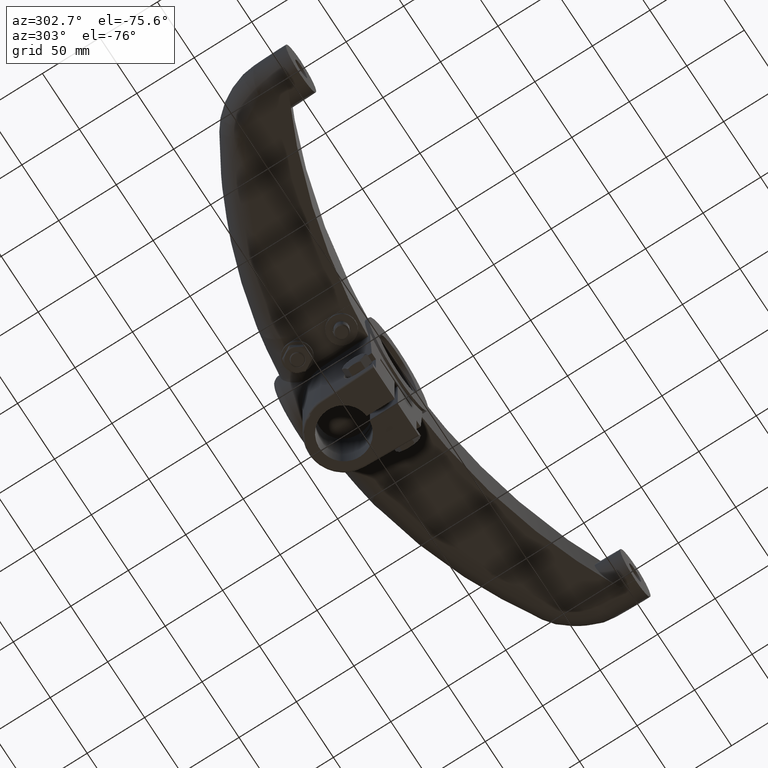
[diagram: clean part render]
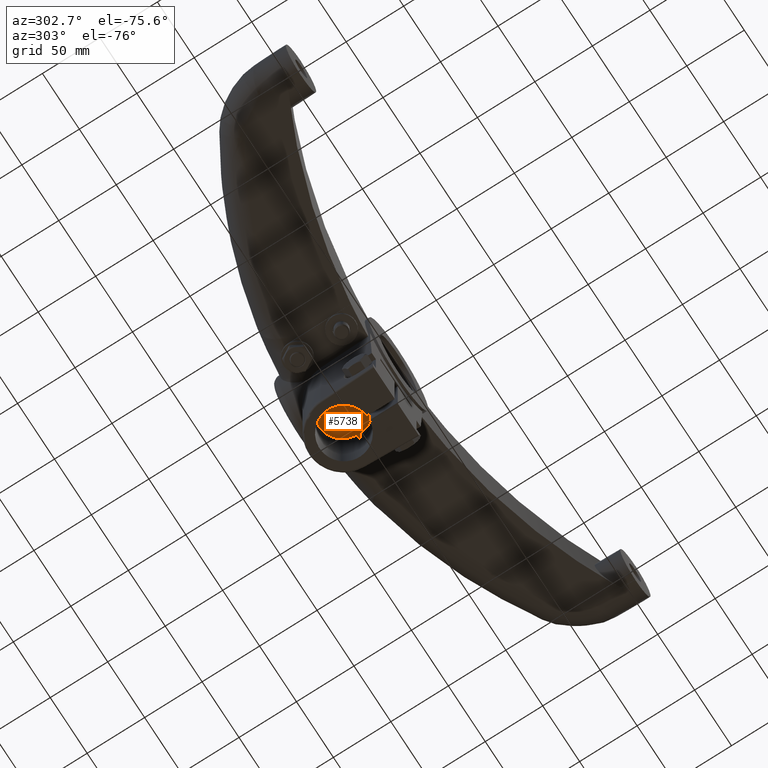
[diagram: same view with one face highlighted and labeled with its STEP entity id]
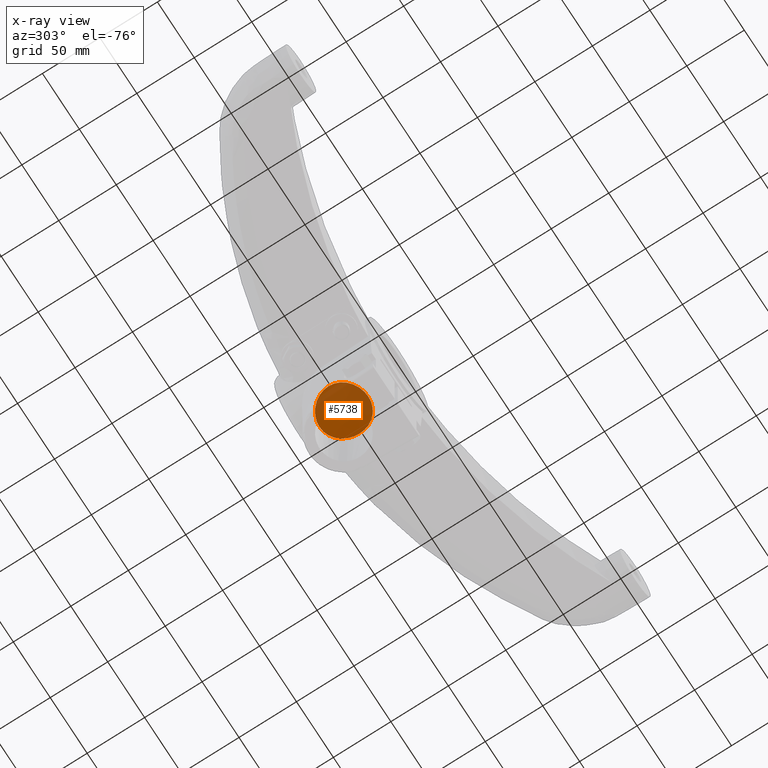
[diagram: x-ray of the same camera — body ghosted, the highlighted face saturated]
A machine part, auxiliary view. The second image highlights one B-rep face of the part: STEP entity #5738.
The next image is the same camera in x-ray: the body ghosted, the highlighted face saturated — about 47% of this face is hidden behind the body in this view.
In plain terms, the highlighted conical surface has half-angle 1 deg.
Its self-contained STEP definition (entity closure, byte-faithful):
#1390=CARTESIAN_POINT('',(2.12E1,1.6243E2,-3.529035592972E1));
#1391=CARTESIAN_POINT('',(2.12E1,1.638832578444E2,-3.531994788350E1));
#1392=CARTESIAN_POINT('',(2.089724578282E1,1.668704103399E2,-3.556529771001E1));
#1393=CARTESIAN_POINT('',(1.944037943076E1,1.713408305239E2,-3.648983366067E1));
#1394=CARTESIAN_POINT('',(1.683146362756E1,1.756552483901E2,-3.787714305570E1));
#1395=CARTESIAN_POINT('',(1.320031883137E1,1.792726629258E2,-3.938100797067E1));
#1396=CARTESIAN_POINT('',(8.982576214631E0,1.818314609775E2,-4.060633954716E1));
#1397=CARTESIAN_POINT('',(4.527379178142E0,1.833099750245E2,-4.136834822774E1));
#1398=CARTESIAN_POINT('',(-4.744468849549E-5,1.837900175441E2,
-4.162371796460E1));
#1399=CARTESIAN_POINT('',(-4.527473560738E0,1.833099547988E2,
-4.136833753752E1));
#1400=CARTESIAN_POINT('',(-8.982667613163E0,1.818314189723E2,
-4.060631848315E1));
#1401=CARTESIAN_POINT('',(-1.320040220431E1,1.792725983706E2,
-3.938097850451E1));
#1402=CARTESIAN_POINT('',(-1.683152996914E1,1.756551624204E2,
-3.787711124720E1));
#1403=CARTESIAN_POINT('',(-1.944042073418E1,1.713407432273E2,
-3.648980942766E1));
#1404=CARTESIAN_POINT('',(-2.089726834662E1,1.668702949613E2,
-3.556528182561E1));
#1405=CARTESIAN_POINT('',(-2.12E1,1.638832107674E2,-3.531994692490E1));
#1406=CARTESIAN_POINT('',(-2.12E1,1.6243E2,-3.529035592972E1));
#1424=CARTESIAN_POINT('',(-2.12E1,1.6243E2,-3.529035592972E1));
#1425=CARTESIAN_POINT('',(-2.119999999999E1,1.609770798256E2,
-3.526077085174E1));
#1426=CARTESIAN_POINT('',(-2.089664250759E1,1.579986019201E2,
-3.538495594937E1));
#1427=CARTESIAN_POINT('',(-1.946151007894E1,1.535761012235E2,
-3.612436380862E1));
#1428=CARTESIAN_POINT('',(-1.689597331138E1,1.492907571681E2,
-3.734147781599E1));
#1429=CARTESIAN_POINT('',(-1.328741229198E1,1.456541313919E2,
-3.873180394767E1));
#1430=CARTESIAN_POINT('',(-9.056028857268E0,1.430596219613E2,
-3.989835825064E1));
#1431=CARTESIAN_POINT('',(-4.567764856241E0,1.415558467925E2,
-4.063341513050E1));
#1432=CARTESIAN_POINT('',(4.839217928754E-5,1.410670714015E2,
-4.088104231193E1));
#1433=CARTESIAN_POINT('',(4.567861055587E0,1.415558676017E2,-4.063340466544E1));
#1434=CARTESIAN_POINT('',(9.056121782486E0,1.430596651010E2,-3.989833780624E1));
#1435=CARTESIAN_POINT('',(1.328749649719E1,1.456541973593E2,-3.873177588317E1));
#1436=CARTESIAN_POINT('',(1.689603952921E1,1.492908440004E2,-3.734144880108E1));
#1437=CARTESIAN_POINT('',(1.946155107798E1,1.535761884923E2,-3.612434295765E1));
#1438=CARTESIAN_POINT('',(2.089666516847E1,1.579987178973E2,-3.538494466340E1));
#1439=CARTESIAN_POINT('',(2.12E1,1.609771269479E2,-3.526077181127E1));
#1440=CARTESIAN_POINT('',(2.12E1,1.6243E2,-3.529035592972E1));
#3086=VERTEX_POINT('',#1390);
#3087=VERTEX_POINT('',#1406);
#5728=CARTESIAN_POINT('',(0.E0,1.624299999834E2,0.E0));
#5729=DIRECTION('',(0.E0,1.E0,0.E0));
#5730=DIRECTION('',(0.E0,0.E0,1.E0));
#5731=AXIS2_PLACEMENT_3D('',#5728,#5729,#5730);
#5732=CONICAL_SURFACE('',#5731,4.116854650850E1,1.000000000010E0);
#5734=ORIENTED_EDGE('',*,*,#5733,.T.);
#5735=ORIENTED_EDGE('',*,*,#5709,.T.);
#5736=EDGE_LOOP('',(#5734,#5735));
#5737=FACE_OUTER_BOUND('',#5736,.F.);
#1407=B_SPLINE_CURVE_WITH_KNOTS('',3,(#1390,#1391,#1392,#1393,#1394,#1395,#1396,
#1397,#1398,#1399,#1400,#1401,#1402,#1403,#1404,#1405,#1406),.UNSPECIFIED.,.F.,
.F.,(4,1,1,1,1,1,1,1,1,1,1,1,1,1,4),(0.E0,7.142857142857E-2,1.428571428571E-1,
2.142857142857E-1,2.857142857143E-1,3.571428571429E-1,4.285714285714E-1,5.E-1,
5.714285714286E-1,6.428571428571E-1,7.142857142857E-1,7.857142857143E-1,
8.571428571429E-1,9.285714285714E-1,1.E0),.UNSPECIFIED.);
#1441=B_SPLINE_CURVE_WITH_KNOTS('',3,(#1424,#1425,#1426,#1427,#1428,#1429,#1430,
#1431,#1432,#1433,#1434,#1435,#1436,#1437,#1438,#1439,#1440),.UNSPECIFIED.,.F.,
.F.,(4,1,1,1,1,1,1,1,1,1,1,1,1,1,4),(0.E0,7.142857142857E-2,1.428571428571E-1,
2.142857142857E-1,2.857142857143E-1,3.571428571429E-1,4.285714285714E-1,5.E-1,
5.714285714286E-1,6.428571428571E-1,7.142857142857E-1,7.857142857143E-1,
8.571428571429E-1,9.285714285714E-1,1.E0),.UNSPECIFIED.);
#5709=EDGE_CURVE('',#3086,#3087,#1407,.T.);
#5733=EDGE_CURVE('',#3087,#3086,#1441,.T.);
#5738=ADVANCED_FACE('',(#5737),#5732,.T.);